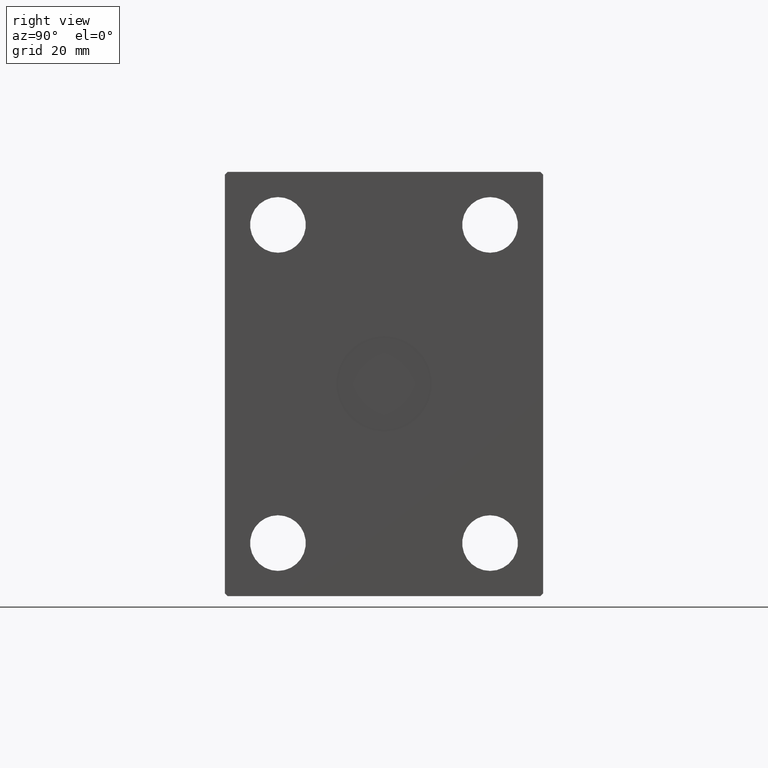
[diagram: clean part render]
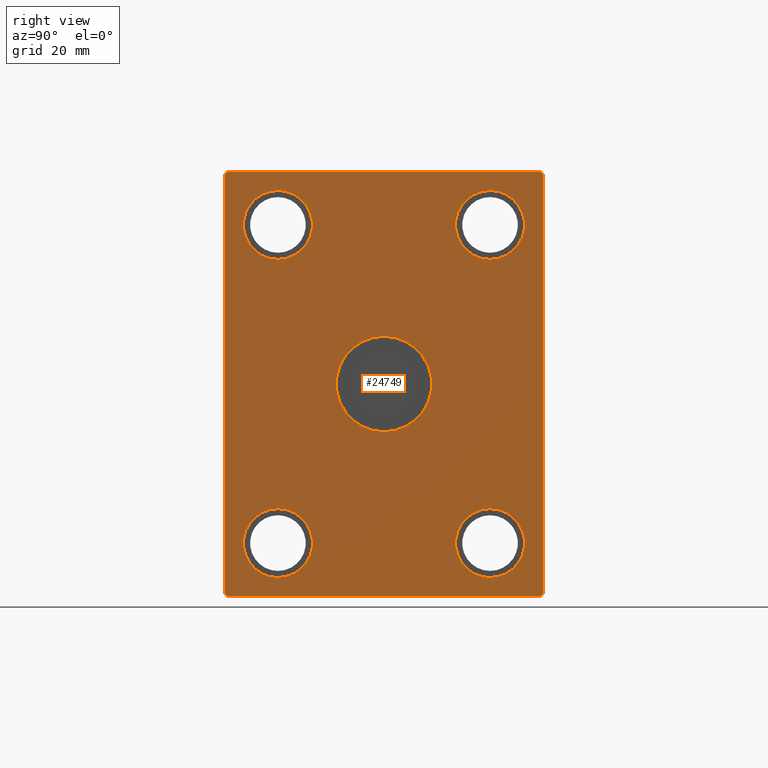
[diagram: same view with one face highlighted and labeled with its STEP entity id]
A machine part, right view. The second image highlights one B-rep face of the part: STEP entity #24749.
In plain terms, the highlighted planar face has unit normal (1, 0, 0).
Its self-contained STEP definition (entity closure, byte-faithful):
#25 = EDGE_LOOP ( 'NONE', ( #16302, #397 ) ) ;
#132 = VERTEX_POINT ( 'NONE', #22071 ) ;
#248 = EDGE_LOOP ( 'NONE', ( #17882, #13385 ) ) ;
#287 = VERTEX_POINT ( 'NONE', #4817 ) ;
#309 = AXIS2_PLACEMENT_3D ( 'NONE', #22386, #12511, #26055 ) ;
#397 = ORIENTED_EDGE ( 'NONE', *, *, #42245, .F. ) ;
#1283 = CARTESIAN_POINT ( 'NONE',  ( 190.0000000000000000, 40.00000000000000711, -59.99999999999999289 ) ) ;
#1552 = EDGE_CURVE ( 'NONE', #35796, #35126, #33094, .T. ) ;
#1640 = EDGE_CURVE ( 'NONE', #31862, #16063, #13976, .T. ) ;
#1662 = LINE ( 'NONE', #31120, #25542 ) ;
#2094 = DIRECTION ( 'NONE',  ( 0.000000000000000000, 1.317511500741878924E-16, -1.000000000000000000 ) ) ;
#2443 = VERTEX_POINT ( 'NONE', #5703 ) ;
#2523 = DIRECTION ( 'NONE',  ( 0.000000000000000000, -0.7071067811865474617, -0.7071067811865474617 ) ) ;
#2595 = EDGE_LOOP ( 'NONE', ( #28659, #6777 ) ) ;
#2737 = CARTESIAN_POINT ( 'NONE',  ( 190.0000000000000000, -59.00000000000001421, 79.99999999999998579 ) ) ;
#2893 = CIRCLE ( 'NONE', #41915, 12.99999999999999112 ) ;
#2986 = DIRECTION ( 'NONE',  ( 0.000000000000000000, 1.000000000000000000, 0.000000000000000000 ) ) ;
#3664 = FACE_BOUND ( 'NONE', #248, .T. ) ;
#3719 = EDGE_LOOP ( 'NONE', ( #26272, #8197 ) ) ;
#3887 = VECTOR ( 'NONE', #36793, 1000.000000000000114 ) ;
#3993 = EDGE_CURVE ( 'NONE', #18236, #38643, #18829, .T. ) ;
#4740 = VECTOR ( 'NONE', #9214, 1000.000000000000000 ) ;
#4817 = CARTESIAN_POINT ( 'NONE',  ( 190.0000000000000000, -60.00000000000000000, -79.00000000000001421 ) ) ;
#5167 = VERTEX_POINT ( 'NONE', #23828 ) ;
#5224 = DIRECTION ( 'NONE',  ( 0.000000000000000000, 0.000000000000000000, -1.000000000000000000 ) ) ;
#5259 = DIRECTION ( 'NONE',  ( 0.000000000000000000, 0.000000000000000000, -1.000000000000000000 ) ) ;
#5327 = CARTESIAN_POINT ( 'NONE',  ( 190.0000000000000000, 40.00000000000000711, 73.00000000000002842 ) ) ;
#5422 = VECTOR ( 'NONE', #19208, 1000.000000000000000 ) ;
#5703 = CARTESIAN_POINT ( 'NONE',  ( 190.0000000000000000, 60.00000000000000000, -79.00000000000000000 ) ) ;
#5766 = CARTESIAN_POINT ( 'NONE',  ( 190.0000000000000000, 59.00000000000000000, -80.00000000000000000 ) ) ;
#6672 = FACE_BOUND ( 'NONE', #2595, .T. ) ;
#6777 = ORIENTED_EDGE ( 'NONE', *, *, #17347, .T. ) ;
#6841 = CARTESIAN_POINT ( 'NONE',  ( 190.0000000000000000, -59.00000000000001421, -80.00000000000000000 ) ) ;
#7038 = ORIENTED_EDGE ( 'NONE', *, *, #11382, .T. ) ;
#7472 = AXIS2_PLACEMENT_3D ( 'NONE', #14955, #24406, #5259 ) ;
#7588 = CARTESIAN_POINT ( 'NONE',  ( 190.0000000000000000, -39.99999999999999289, -72.99999999999998579 ) ) ;
#8049 = DIRECTION ( 'NONE',  ( 0.000000000000000000, 0.000000000000000000, -1.000000000000000000 ) ) ;
#8168 = CARTESIAN_POINT ( 'NONE',  ( 190.0000000000000000, 59.00000000000000000, -80.00000000000000000 ) ) ;
#8197 = ORIENTED_EDGE ( 'NONE', *, *, #33467, .T. ) ;
#9214 = DIRECTION ( 'NONE',  ( 0.000000000000000000, -8.783410004945858675E-17, 1.000000000000000000 ) ) ;
#9501 = CARTESIAN_POINT ( 'NONE',  ( 190.0000000000000000, -39.99999999999999289, 60.00000000000002132 ) ) ;
#10363 = ORIENTED_EDGE ( 'NONE', *, *, #22238, .F. ) ;
#10528 = DIRECTION ( 'NONE',  ( 0.000000000000000000, 0.000000000000000000, -1.000000000000000000 ) ) ;
#10763 = ORIENTED_EDGE ( 'NONE', *, *, #27220, .T. ) ;
#10885 = ORIENTED_EDGE ( 'NONE', *, *, #35201, .T. ) ;
#10891 = EDGE_CURVE ( 'NONE', #12142, #33954, #39564, .T. ) ;
#11024 = CARTESIAN_POINT ( 'NONE',  ( 190.0000000000000000, 59.99999999999998579, 79.00000000000000000 ) ) ;
#11382 = EDGE_CURVE ( 'NONE', #15384, #12208, #41303, .T. ) ;
#11870 = DIRECTION ( 'NONE',  ( 0.000000000000000000, -1.000000000000000000, -1.176083712526648949E-16 ) ) ;
#12014 = CARTESIAN_POINT ( 'NONE',  ( 190.0000000000000000, 60.00000000000000000, -79.00000000000000000 ) ) ;
#12142 = VERTEX_POINT ( 'NONE', #15966 ) ;
#12208 = VERTEX_POINT ( 'NONE', #12749 ) ;
#12511 = DIRECTION ( 'NONE',  ( -1.000000000000000000, -0.000000000000000000, -0.000000000000000000 ) ) ;
#12513 = DIRECTION ( 'NONE',  ( -1.000000000000000000, -0.000000000000000000, -0.000000000000000000 ) ) ;
#12537 = LINE ( 'NONE', #41750, #5422 ) ;
#12559 = EDGE_CURVE ( 'NONE', #132, #26185, #35491, .T. ) ;
#12749 = CARTESIAN_POINT ( 'NONE',  ( 190.0000000000000000, -59.00000000000001421, 79.99999999999998579 ) ) ;
#13142 = FACE_OUTER_BOUND ( 'NONE', #24527, .T. ) ;
#13385 = ORIENTED_EDGE ( 'NONE', *, *, #12559, .F. ) ;
#13505 = CARTESIAN_POINT ( 'NONE',  ( 190.0000000000000000, -39.99999999999999289, -59.99999999999999289 ) ) ;
#13688 = CIRCLE ( 'NONE', #7472, 12.99999999999999112 ) ;
#13976 = CIRCLE ( 'NONE', #35960, 12.99999999999999112 ) ;
#14902 = VERTEX_POINT ( 'NONE', #11024 ) ;
#14914 = CARTESIAN_POINT ( 'NONE',  ( 190.0000000000000000, 40.00000000000000711, 60.00000000000002132 ) ) ;
#14955 = CARTESIAN_POINT ( 'NONE',  ( 190.0000000000000000, -39.99999999999999289, -59.99999999999999289 ) ) ;
#15189 = AXIS2_PLACEMENT_3D ( 'NONE', #27307, #40820, #31392 ) ;
#15237 = DIRECTION ( 'NONE',  ( 1.000000000000000000, -0.000000000000000000, -0.000000000000000000 ) ) ;
#15384 = VERTEX_POINT ( 'NONE', #24244 ) ;
#15688 = AXIS2_PLACEMENT_3D ( 'NONE', #14914, #40910, #5224 ) ;
#15966 = CARTESIAN_POINT ( 'NONE',  ( 190.0000000000000000, -39.99999999999999289, 47.00000000000000711 ) ) ;
#16063 = VERTEX_POINT ( 'NONE', #22584 ) ;
#16302 = ORIENTED_EDGE ( 'NONE', *, *, #1640, .F. ) ;
#16980 = CARTESIAN_POINT ( 'NONE',  ( 190.0000000000000000, 0.000000000000000000, 0.000000000000000000 ) ) ;
#17347 = EDGE_CURVE ( 'NONE', #33954, #12142, #41656, .T. ) ;
#17882 = ORIENTED_EDGE ( 'NONE', *, *, #29945, .F. ) ;
#18236 = VERTEX_POINT ( 'NONE', #41304 ) ;
#18829 = CIRCLE ( 'NONE', #309, 12.99999999999999112 ) ;
#19208 = DIRECTION ( 'NONE',  ( 0.000000000000000000, 0.7071067811865450192, -0.7071067811865500152 ) ) ;
#19403 = CARTESIAN_POINT ( 'NONE',  ( 190.0000000000000000, 40.00000000000000711, 47.00000000000000711 ) ) ;
#20628 = VECTOR ( 'NONE', #2523, 1000.000000000000114 ) ;
#20754 = DIRECTION ( 'NONE',  ( 1.000000000000000000, 0.000000000000000000, 0.000000000000000000 ) ) ;
#21309 = CARTESIAN_POINT ( 'NONE',  ( 190.0000000000000000, -59.00000000000001421, -80.00000000000000000 ) ) ;
#21758 = AXIS2_PLACEMENT_3D ( 'NONE', #37493, #20754, #8049 ) ;
#21786 = EDGE_CURVE ( 'NONE', #31114, #25016, #34901, .T. ) ;
#22071 = CARTESIAN_POINT ( 'NONE',  ( 190.0000000000000000, 2.204364238465235428E-15, 18.00000000000000000 ) ) ;
#22238 = EDGE_CURVE ( 'NONE', #25016, #31114, #26685, .T. ) ;
#22386 = CARTESIAN_POINT ( 'NONE',  ( 190.0000000000000000, 40.00000000000000711, -59.99999999999999289 ) ) ;
#22584 = CARTESIAN_POINT ( 'NONE',  ( 190.0000000000000000, -39.99999999999999289, -47.00000000000000000 ) ) ;
#23140 = DIRECTION ( 'NONE',  ( 0.000000000000000000, 0.000000000000000000, 1.000000000000000000 ) ) ;
#23230 = PLANE ( 'NONE',  #38378 ) ;
#23244 = AXIS2_PLACEMENT_3D ( 'NONE', #25338, #15237, #28141 ) ;
#23419 = EDGE_CURVE ( 'NONE', #287, #35796, #12537, .T. ) ;
#23695 = LINE ( 'NONE', #33798, #3887 ) ;
#23828 = CARTESIAN_POINT ( 'NONE',  ( 190.0000000000000000, -60.00000000000002132, 78.99999999999998579 ) ) ;
#24244 = CARTESIAN_POINT ( 'NONE',  ( 190.0000000000000000, 58.99999999999998579, 80.00000000000000000 ) ) ;
#24382 = CARTESIAN_POINT ( 'NONE',  ( 190.0000000000000000, 0.000000000000000000, -18.00000000000000000 ) ) ;
#24406 = DIRECTION ( 'NONE',  ( 1.000000000000000000, -0.000000000000000000, -0.000000000000000000 ) ) ;
#24527 = EDGE_LOOP ( 'NONE', ( #41653, #7038, #10763, #39701, #40492, #25391, #33229, #10885 ) ) ;
#24723 = LINE ( 'NONE', #8168, #30909 ) ;
#24749 = ADVANCED_FACE ( 'NONE', ( #3664, #6672, #36745, #13142, #39976, #26252 ), #23230, .T. ) ;
#25016 = VERTEX_POINT ( 'NONE', #5327 ) ;
#25338 = CARTESIAN_POINT ( 'NONE',  ( 190.0000000000000000, 40.00000000000000711, 60.00000000000002132 ) ) ;
#25391 = ORIENTED_EDGE ( 'NONE', *, *, #1552, .T. ) ;
#25542 = VECTOR ( 'NONE', #2094, 1000.000000000000000 ) ;
#26055 = DIRECTION ( 'NONE',  ( 0.000000000000000000, 0.000000000000000000, 1.000000000000000000 ) ) ;
#26185 = VERTEX_POINT ( 'NONE', #24382 ) ;
#26252 = FACE_BOUND ( 'NONE', #29207, .T. ) ;
#26272 = ORIENTED_EDGE ( 'NONE', *, *, #3993, .T. ) ;
#26580 = CARTESIAN_POINT ( 'NONE',  ( 190.0000000000000000, -39.99999999999999289, 60.00000000000002132 ) ) ;
#26685 = CIRCLE ( 'NONE', #15688, 13.00000000000001066 ) ;
#27220 = EDGE_CURVE ( 'NONE', #12208, #5167, #32200, .T. ) ;
#27307 = CARTESIAN_POINT ( 'NONE',  ( 190.0000000000000000, 0.000000000000000000, 0.000000000000000000 ) ) ;
#27609 = EDGE_CURVE ( 'NONE', #35126, #2443, #24723, .T. ) ;
#27716 = VECTOR ( 'NONE', #2986, 1000.000000000000000 ) ;
#27896 = VECTOR ( 'NONE', #11870, 1000.000000000000000 ) ;
#28141 = DIRECTION ( 'NONE',  ( 0.000000000000000000, 0.000000000000000000, -1.000000000000000000 ) ) ;
#28659 = ORIENTED_EDGE ( 'NONE', *, *, #10891, .T. ) ;
#29075 = CARTESIAN_POINT ( 'NONE',  ( 190.0000000000000000, 58.99999999999998579, 80.00000000000000000 ) ) ;
#29207 = EDGE_LOOP ( 'NONE', ( #39462, #10363 ) ) ;
#29611 = DIRECTION ( 'NONE',  ( -1.000000000000000000, -0.000000000000000000, -0.000000000000000000 ) ) ;
#29745 = CARTESIAN_POINT ( 'NONE',  ( 190.0000000000000000, -39.99999999999999289, 73.00000000000002842 ) ) ;
#29945 = EDGE_CURVE ( 'NONE', #26185, #132, #33741, .T. ) ;
#30226 = CARTESIAN_POINT ( 'NONE',  ( 190.0000000000000000, 40.00000000000000711, -47.00000000000000000 ) ) ;
#30833 = EDGE_CURVE ( 'NONE', #5167, #287, #1662, .T. ) ;
#30909 = VECTOR ( 'NONE', #38036, 1000.000000000000114 ) ;
#31114 = VERTEX_POINT ( 'NONE', #19403 ) ;
#31120 = CARTESIAN_POINT ( 'NONE',  ( 190.0000000000000000, -60.00000000000002132, 78.99999999999998579 ) ) ;
#31384 = LINE ( 'NONE', #12014, #4740 ) ;
#31392 = DIRECTION ( 'NONE',  ( 0.000000000000000000, 0.000000000000000000, -1.000000000000000000 ) ) ;
#31862 = VERTEX_POINT ( 'NONE', #7588 ) ;
#32200 = LINE ( 'NONE', #2737, #20628 ) ;
#32946 = DIRECTION ( 'NONE',  ( 0.000000000000000000, 0.000000000000000000, 1.000000000000000000 ) ) ;
#33094 = LINE ( 'NONE', #6841, #27716 ) ;
#33229 = ORIENTED_EDGE ( 'NONE', *, *, #27609, .T. ) ;
#33467 = EDGE_CURVE ( 'NONE', #38643, #18236, #2893, .T. ) ;
#33741 = CIRCLE ( 'NONE', #15189, 18.00000000000000000 ) ;
#33798 = CARTESIAN_POINT ( 'NONE',  ( 190.0000000000000000, 59.99999999999998579, 79.00000000000000000 ) ) ;
#33954 = VERTEX_POINT ( 'NONE', #29745 ) ;
#34901 = CIRCLE ( 'NONE', #23244, 13.00000000000001066 ) ;
#35126 = VERTEX_POINT ( 'NONE', #5766 ) ;
#35201 = EDGE_CURVE ( 'NONE', #2443, #14902, #31384, .T. ) ;
#35491 = CIRCLE ( 'NONE', #21758, 18.00000000000000000 ) ;
#35659 = EDGE_CURVE ( 'NONE', #14902, #15384, #23695, .T. ) ;
#35796 = VERTEX_POINT ( 'NONE', #21309 ) ;
#35960 = AXIS2_PLACEMENT_3D ( 'NONE', #13505, #39724, #39096 ) ;
#36742 = DIRECTION ( 'NONE',  ( -1.000000000000000000, -0.000000000000000000, -0.000000000000000000 ) ) ;
#36745 = FACE_BOUND ( 'NONE', #3719, .T. ) ;
#36793 = DIRECTION ( 'NONE',  ( 0.000000000000000000, -0.7071067811865474617, 0.7071067811865474617 ) ) ;
#36955 = DIRECTION ( 'NONE',  ( 0.000000000000000000, 0.000000000000000000, 1.000000000000000000 ) ) ;
#37493 = CARTESIAN_POINT ( 'NONE',  ( 190.0000000000000000, 0.000000000000000000, 0.000000000000000000 ) ) ;
#38036 = DIRECTION ( 'NONE',  ( 0.000000000000000000, 0.7071067811865474617, 0.7071067811865474617 ) ) ;
#38378 = AXIS2_PLACEMENT_3D ( 'NONE', #16980, #42359, #10528 ) ;
#38643 = VERTEX_POINT ( 'NONE', #30226 ) ;
#39096 = DIRECTION ( 'NONE',  ( 0.000000000000000000, 0.000000000000000000, -1.000000000000000000 ) ) ;
#39462 = ORIENTED_EDGE ( 'NONE', *, *, #21786, .F. ) ;
#39564 = CIRCLE ( 'NONE', #40255, 13.00000000000000533 ) ;
#39701 = ORIENTED_EDGE ( 'NONE', *, *, #30833, .T. ) ;
#39724 = DIRECTION ( 'NONE',  ( 1.000000000000000000, -0.000000000000000000, -0.000000000000000000 ) ) ;
#39976 = FACE_BOUND ( 'NONE', #25, .T. ) ;
#40255 = AXIS2_PLACEMENT_3D ( 'NONE', #26580, #29611, #23140 ) ;
#40492 = ORIENTED_EDGE ( 'NONE', *, *, #23419, .T. ) ;
#40820 = DIRECTION ( 'NONE',  ( 1.000000000000000000, 0.000000000000000000, 0.000000000000000000 ) ) ;
#40910 = DIRECTION ( 'NONE',  ( 1.000000000000000000, -0.000000000000000000, -0.000000000000000000 ) ) ;
#41303 = LINE ( 'NONE', #29075, #27896 ) ;
#41304 = CARTESIAN_POINT ( 'NONE',  ( 190.0000000000000000, 40.00000000000000711, -72.99999999999998579 ) ) ;
#41653 = ORIENTED_EDGE ( 'NONE', *, *, #35659, .T. ) ;
#41656 = CIRCLE ( 'NONE', #42358, 13.00000000000000533 ) ;
#41750 = CARTESIAN_POINT ( 'NONE',  ( 190.0000000000000000, -60.00000000000000000, -79.00000000000001421 ) ) ;
#41915 = AXIS2_PLACEMENT_3D ( 'NONE', #1283, #36742, #36955 ) ;
#42245 = EDGE_CURVE ( 'NONE', #16063, #31862, #13688, .T. ) ;
#42358 = AXIS2_PLACEMENT_3D ( 'NONE', #9501, #12513, #32946 ) ;
#42359 = DIRECTION ( 'NONE',  ( 1.000000000000000000, 0.000000000000000000, 0.000000000000000000 ) ) ;